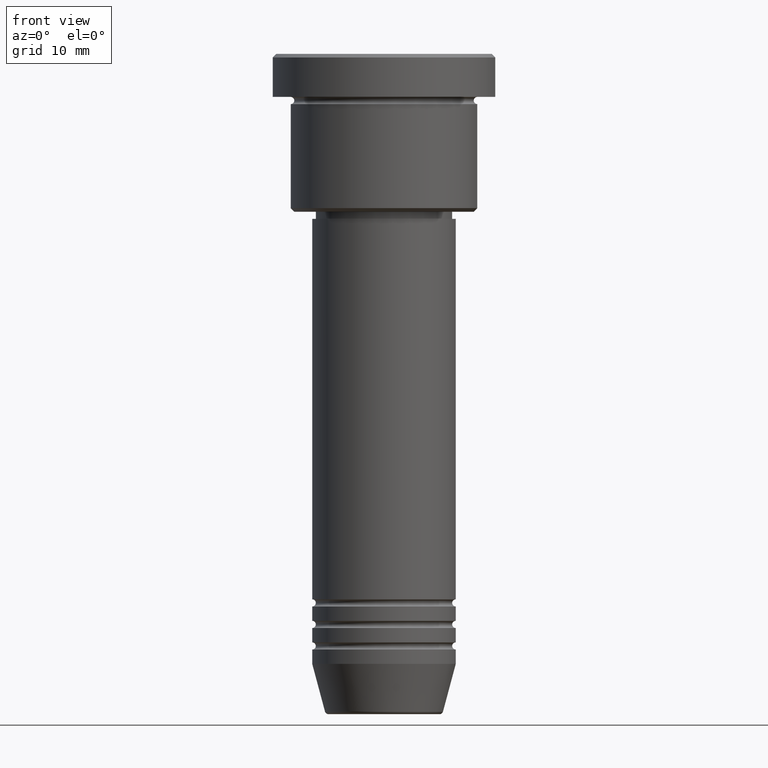
[diagram: clean part render]
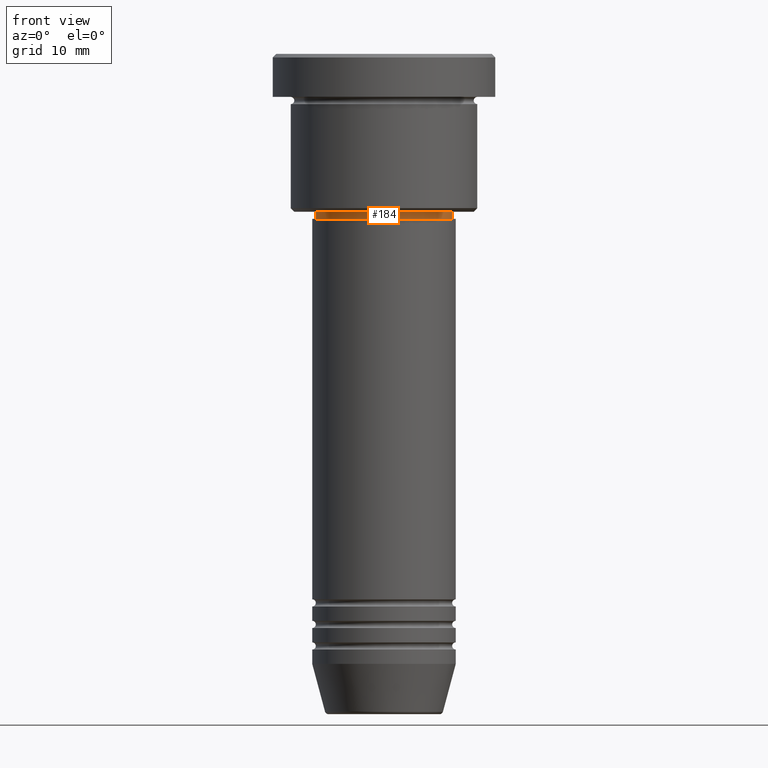
[diagram: same view with one face highlighted and labeled with its STEP entity id]
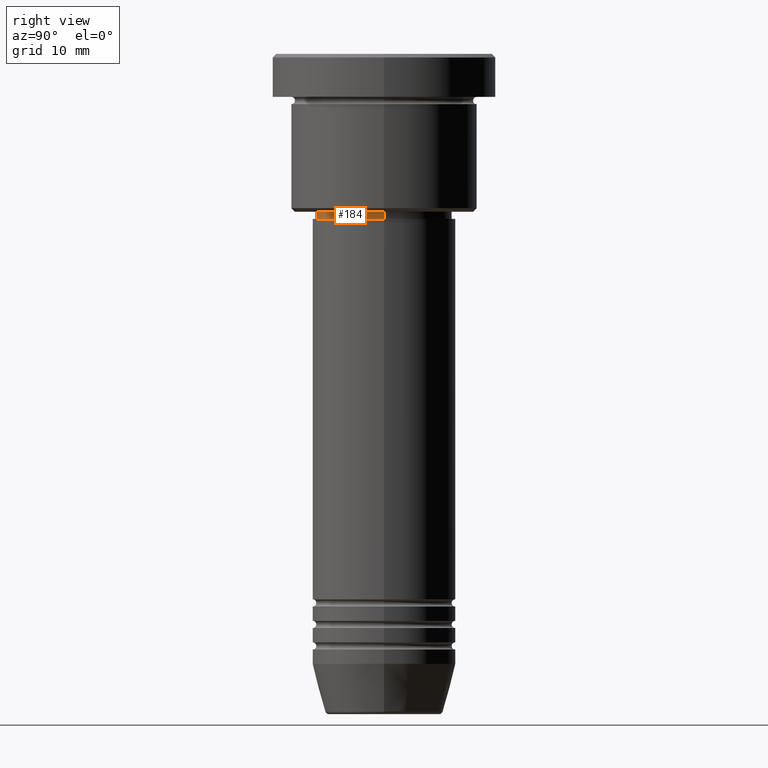
[diagram: same view with one face highlighted and labeled with its STEP entity id]
A machine part, front view. The second image highlights one B-rep face of the part: STEP entity #184.
A second angle (right view) of the same face is appended — the face is thin or edge-on in the first view.
In plain terms, the highlighted cylindrical surface (partial cylindrical patch) has radius 9.5 mm, axis along (-0, -0, 1).
Its self-contained STEP definition (entity closure, byte-faithful):
#3 = ORIENTED_EDGE ( 'NONE', *, *, #456, .F. ) ;
#60 = LINE ( 'NONE', #327, #297 ) ;
#88 = ORIENTED_EDGE ( 'NONE', *, *, #813, .T. ) ;
#128 = LINE ( 'NONE', #760, #239 ) ;
#130 = EDGE_CURVE ( 'NONE', #594, #528, #128, .T. ) ;
#133 = CARTESIAN_POINT ( 'NONE',  ( 0.000000000000000000, 0.000000000000000000, 0.000000000000000000 ) ) ;
#177 = CARTESIAN_POINT ( 'NONE',  ( 0.000000000000000000, 0.000000000000000000, -22.99999999999999289 ) ) ;
#183 = DIRECTION ( 'NONE',  ( 1.000000000000000000, 0.000000000000000000, 0.000000000000000000 ) ) ;
#184 = ADVANCED_FACE ( 'NONE', ( #1110 ), #674, .T. ) ;
#237 = DIRECTION ( 'NONE',  ( -0.000000000000000000, -0.000000000000000000, 1.000000000000000000 ) ) ;
#239 = VECTOR ( 'NONE', #861, 1000.000000000000000 ) ;
#241 = ORIENTED_EDGE ( 'NONE', *, *, #130, .F. ) ;
#277 = AXIS2_PLACEMENT_3D ( 'NONE', #177, #441, #547 ) ;
#297 = VECTOR ( 'NONE', #237, 1000.000000000000000 ) ;
#327 = CARTESIAN_POINT ( 'NONE',  ( 9.500000000000000000, 0.000000000000000000, 0.000000000000000000 ) ) ;
#383 = CARTESIAN_POINT ( 'NONE',  ( -9.500000000000000000, 1.163414459189985485E-15, -22.99999999999999289 ) ) ;
#423 = CARTESIAN_POINT ( 'NONE',  ( 9.500000000000000000, 0.000000000000000000, -21.99999999999999645 ) ) ;
#441 = DIRECTION ( 'NONE',  ( -0.000000000000000000, -0.000000000000000000, 1.000000000000000000 ) ) ;
#456 = EDGE_CURVE ( 'NONE', #528, #820, #650, .T. ) ;
#485 = DIRECTION ( 'NONE',  ( 1.000000000000000000, 0.000000000000000000, 0.000000000000000000 ) ) ;
#499 = EDGE_CURVE ( 'NONE', #594, #789, #648, .T. ) ;
#512 = AXIS2_PLACEMENT_3D ( 'NONE', #133, #844, #485 ) ;
#528 = VERTEX_POINT ( 'NONE', #1085 ) ;
#547 = DIRECTION ( 'NONE',  ( 1.000000000000000000, 0.000000000000000000, 0.000000000000000000 ) ) ;
#554 = DIRECTION ( 'NONE',  ( -0.000000000000000000, -0.000000000000000000, 1.000000000000000000 ) ) ;
#594 = VERTEX_POINT ( 'NONE', #383 ) ;
#648 = CIRCLE ( 'NONE', #277, 9.500000000000000000 ) ;
#650 = CIRCLE ( 'NONE', #718, 9.500000000000000000 ) ;
#674 = CYLINDRICAL_SURFACE ( 'NONE', #512, 9.500000000000000000 ) ;
#717 = CARTESIAN_POINT ( 'NONE',  ( 0.000000000000000000, 0.000000000000000000, -21.99999999999999645 ) ) ;
#718 = AXIS2_PLACEMENT_3D ( 'NONE', #717, #554, #183 ) ;
#760 = CARTESIAN_POINT ( 'NONE',  ( -9.500000000000000000, 1.163414459189985485E-15, 0.000000000000000000 ) ) ;
#789 = VERTEX_POINT ( 'NONE', #1174 ) ;
#813 = EDGE_CURVE ( 'NONE', #789, #820, #60, .T. ) ;
#820 = VERTEX_POINT ( 'NONE', #423 ) ;
#844 = DIRECTION ( 'NONE',  ( -0.000000000000000000, -0.000000000000000000, 1.000000000000000000 ) ) ;
#861 = DIRECTION ( 'NONE',  ( -0.000000000000000000, -0.000000000000000000, 1.000000000000000000 ) ) ;
#905 = ORIENTED_EDGE ( 'NONE', *, *, #499, .T. ) ;
#1085 = CARTESIAN_POINT ( 'NONE',  ( -9.500000000000000000, 1.163414459189985485E-15, -21.99999999999999645 ) ) ;
#1101 = EDGE_LOOP ( 'NONE', ( #241, #905, #88, #3 ) ) ;
#1110 = FACE_OUTER_BOUND ( 'NONE', #1101, .T. ) ;
#1174 = CARTESIAN_POINT ( 'NONE',  ( 9.500000000000000000, 0.000000000000000000, -22.99999999999999289 ) ) ;